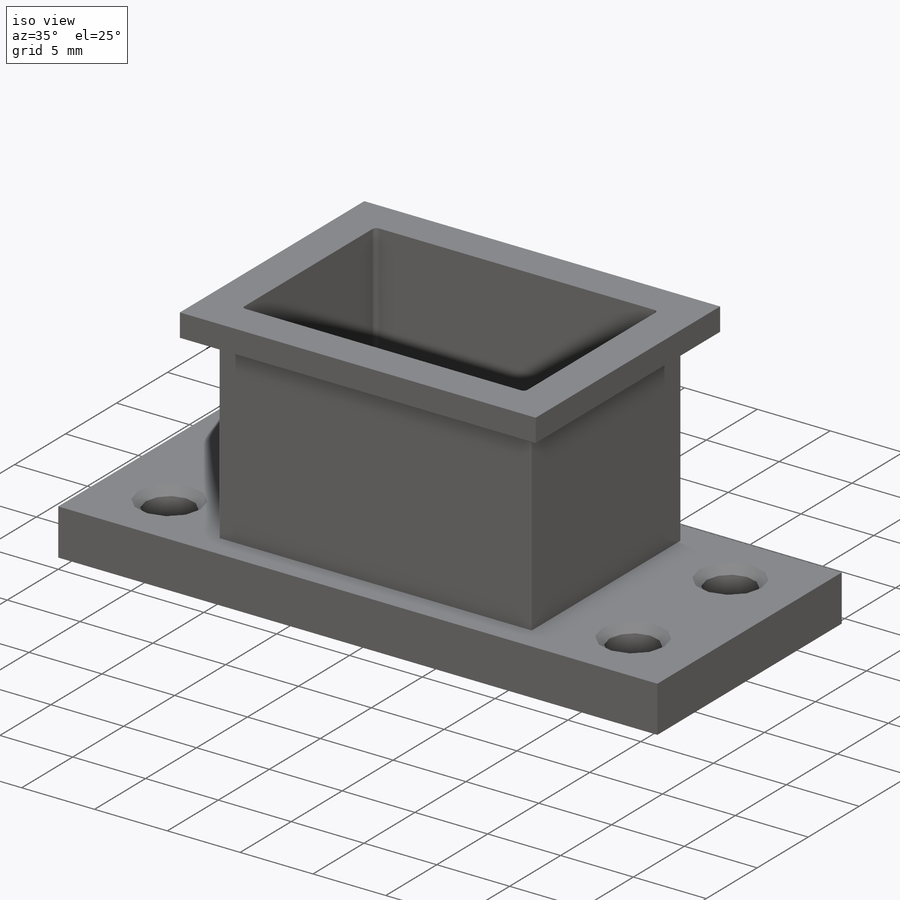
[diagram: iso view]
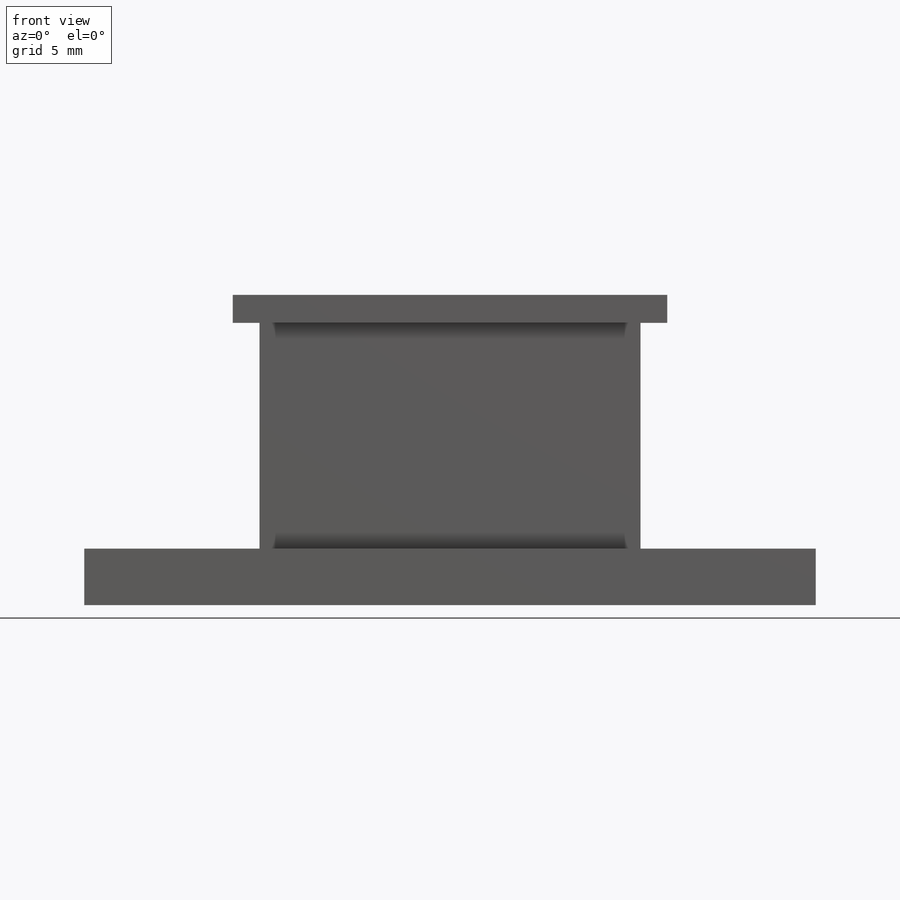
[diagram: front view]
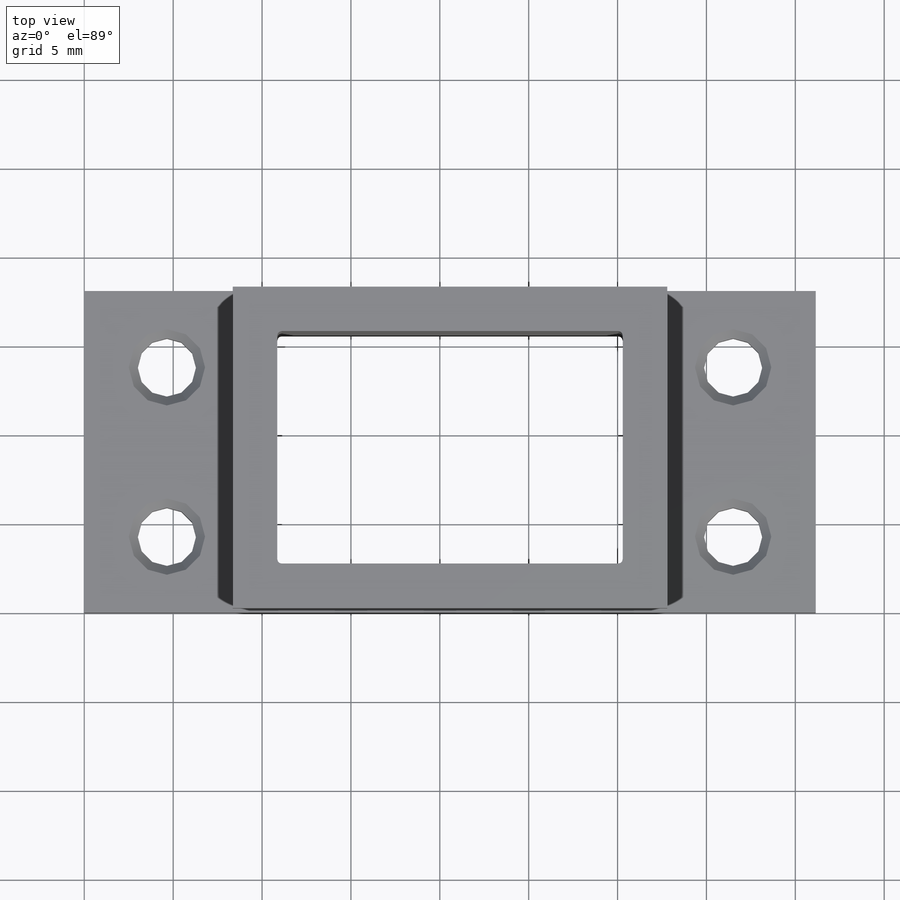
[diagram: top view]
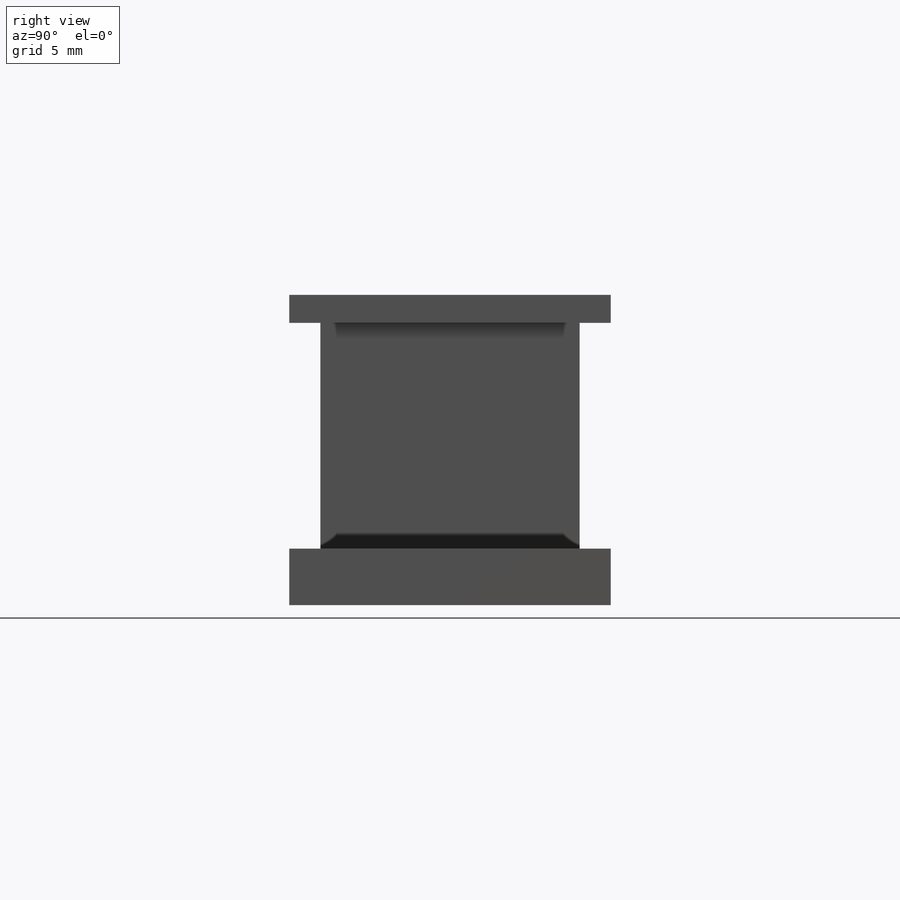
[diagram: right view]
SOLIDWORKS PART (.sldprt)
format: sldprt  version: not decoded by parser v0  size: 261,632 bytes
history: native  units: mm
features: sketch x4, cut_extrude x3, chamfer x2, material x1, extrude x1, fillet x1 (+11 scaffold rows collapsed)
feature tree (23):
  scaffold x11  (default folders/planes/origin — collapsed)
  material  "Material <not specified>"
  sketch  "Sketch1"  dims[c1.D1=18.0848mm c1.D2=41.148mm c1.D3=19.304mm c1.D4=12.9032mm c1.D5=2.5019mm c1.D6=10.8585mm c1.D7=10.922mm c1.D8=2.5908mm c2.D3=10.8585mm c2.D7=19.431mm c2.D4=2.5019mm c2.D8=13.081mm]
  extrude  "Extrude1"  Depth=17.4498mm
  sketch  "Sketch2"  dims[c1.D2=18.0848mm c1.D1=24.4348mm c2.D2=8.3566mm c2.D1=8.3566mm c2.D3=24.4348mm c3.D1=0.0mm]
  cut_extrude  "Cut-Extrude1"  Depth=14.2748mm
  sketch  "Sketch3"  dims[c1.D2=14.4272mm c1.D3=21.336mm c1.D4=0.762mm c1.D5=0.762mm c1.D6=1.016mm c1.D7=8.3566mm c2.D2=1.4986mm c2.D3=1.4986mm c2.D4=21.4376mm c2.D5=1.7526mm c2.D6=1.7526mm c2.D7=14.5796mm c2.D1=0.0mm]
  cut_extrude  "Cut-Extrude2"  Depth=1.5748mm
  sketch  "Sketch4"  dims[c1.D1=3.2766mm c1.D2=3.2766mm c1.D3=3.2766mm c1.D5=3.2766mm c2.D2=3.2766mm c2.D3=3.2766mm c2.D6=3.2766mm c2.D7=3.2766mm c3.D2=9.525mm c3.D3=31.8516mm c3.D4=4.6482mm c3.D5=4.2672mm c4.D2=4.2926mm c4.D3=4.6482mm c4.D6=31.8516mm c4.D7=9.525mm]
  cut_extrude  "Cut-Extrude3"  [1 undecoded]
  chamfer  "Chamfer1"  Distance=0.508mm Angle=45deg
  fillet  "Fillet1"  Radius=0.254mm
  chamfer  "Chamfer2"  Distance=0.508mm Angle=45deg
decode coverage: 10 of 11 modeling features carry decoded parameters
note: 1 parameter value undecoded
note: suppression state not decoded; provenance and decode notes live in map.json
